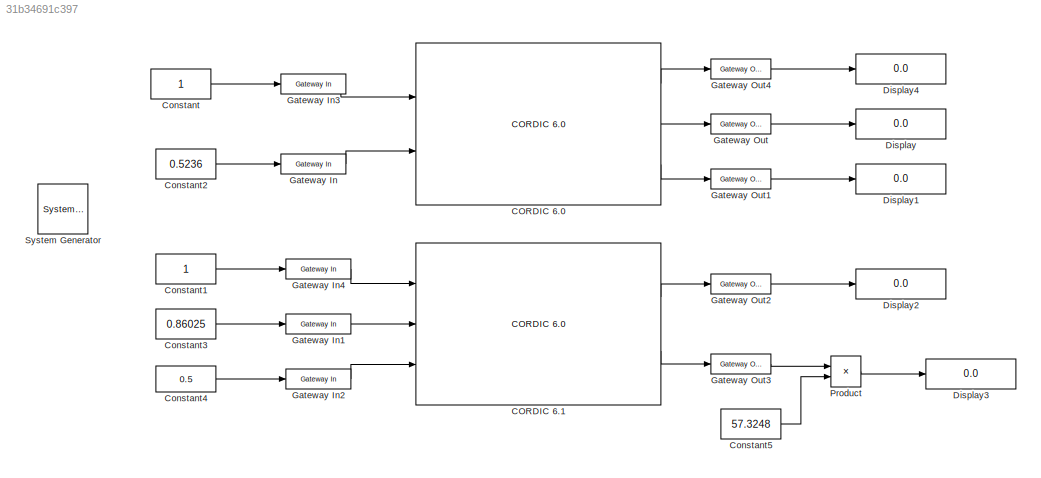
MODEL slx_31b34691c397
KIND model
CONFIG AbsTol = auto
CONFIG EnableMultiTasking = off
CONFIG FixedStep = auto
CONFIG MaxStep = auto
CONFIG MinStep = auto
CONFIG RelTol = 1e-3
CONFIG SampleTimeConstraint = Unconstrained
CONFIG SolverName = VariableStepAuto
CONFIG StartTime = 0.0
CONFIG StopTime = 50
BLOCK [Reference]  System Generator  REF=xbsIndex_r4/ System Generator
  AttributesFormatString = System\nGenerator
  Ports = []
  SourceBlock = xbsIndex_r4/ System Generator
  SourceType = Xilinx System Generator Block
  Tag = genX
  UserDataPersistent = on
BLOCK [Reference] CORDIC 6.0  REF=hdlDSPIP/CORDIC 6.0 
  Ports = [2, 3]
  SourceBlock = hdlDSPIP/CORDIC 6.0
  SourceType = CORDIC 6.0 Block
BLOCK [Reference] CORDIC 6.1  REF=hdlDSPIP/CORDIC 6.0 
  Ports = [3, 2]
  SourceBlock = hdlDSPIP/CORDIC 6.0
  SourceType = CORDIC 6.0 Block
BLOCK [Constant] Constant
BLOCK [Constant] Constant1
BLOCK [Constant] Constant2
  Value = 0.5236
BLOCK [Constant] Constant3
  Value = 0.86025
BLOCK [Constant] Constant4
  Value = 0.5
BLOCK [Constant] Constant5
  Value = 57.3248
BLOCK [Display] Display
  Decimation = 1
  Ports = [1]
BLOCK [Display] Display1
  Decimation = 1
  Ports = [1]
BLOCK [Display] Display2
  Decimation = 1
  Ports = [1]
BLOCK [Display] Display3
  Decimation = 1
  Ports = [1]
BLOCK [Display] Display4
  Decimation = 1
  Ports = [1]
BLOCK [Reference] Gateway In  REF=hdlBasic/Gateway In
  Ports = [1, 1]
  SourceBlock = hdlBasic/Gateway In
  SourceType = Gateway In Block
BLOCK [Reference] Gateway In1  REF=hdlBasic/Gateway In
  Ports = [1, 1]
  SourceBlock = hdlBasic/Gateway In
  SourceType = Gateway In Block
BLOCK [Reference] Gateway In2  REF=hdlBasic/Gateway In
  Ports = [1, 1]
  SourceBlock = hdlBasic/Gateway In
  SourceType = Gateway In Block
BLOCK [Reference] Gateway In3  REF=hdlBasic/Gateway In
  Ports = [1, 1]
  SourceBlock = hdlBasic/Gateway In
  SourceType = Gateway In Block
BLOCK [Reference] Gateway In4  REF=hdlBasic/Gateway In
  Ports = [1, 1]
  SourceBlock = hdlBasic/Gateway In
  SourceType = Gateway In Block
BLOCK [Reference] Gateway Out  REF=hdlBasic/Gateway Out
  Ports = [1, 1]
  SourceBlock = hdlBasic/Gateway Out
  SourceType = Gateway Out Block
BLOCK [Reference] Gateway Out1  REF=hdlBasic/Gateway Out
  Ports = [1, 1]
  SourceBlock = hdlBasic/Gateway Out
  SourceType = Gateway Out Block
BLOCK [Reference] Gateway Out2  REF=hdlBasic/Gateway Out
  Ports = [1, 1]
  SourceBlock = hdlBasic/Gateway Out
  SourceType = Gateway Out Block
BLOCK [Reference] Gateway Out3  REF=hdlBasic/Gateway Out
  Ports = [1, 1]
  SourceBlock = hdlBasic/Gateway Out
  SourceType = Gateway Out Block
BLOCK [Reference] Gateway Out4  REF=hdlBasic/Gateway Out
  Ports = [1, 1]
  SourceBlock = hdlBasic/Gateway Out
  SourceType = Gateway Out Block
BLOCK [Product] Product
  Ports = [2, 1]
LINE CORDIC 6.0:1 -> Gateway Out4:1
LINE CORDIC 6.0:2 -> Gateway Out:1
LINE CORDIC 6.0:3 -> Gateway Out1:1
LINE CORDIC 6.1:1 -> Gateway Out2:1
LINE CORDIC 6.1:2 -> Gateway Out3:1
LINE Constant1:1 -> Gateway In4:1
LINE Constant2:1 -> Gateway In:1
LINE Constant3:1 -> Gateway In1:1
LINE Constant4:1 -> Gateway In2:1
LINE Constant5:1 -> Product:2
LINE Constant:1 -> Gateway In3:1
LINE Gateway In1:1 -> CORDIC 6.1:2
LINE Gateway In2:1 -> CORDIC 6.1:3
LINE Gateway In3:1 -> CORDIC 6.0:1
LINE Gateway In4:1 -> CORDIC 6.1:1
LINE Gateway In:1 -> CORDIC 6.0:2
LINE Gateway Out1:1 -> Display1:1
LINE Gateway Out2:1 -> Display2:1
LINE Gateway Out3:1 -> Product:1
LINE Gateway Out4:1 -> Display4:1
LINE Gateway Out:1 -> Display:1
LINE Product:1 -> Display3:1
